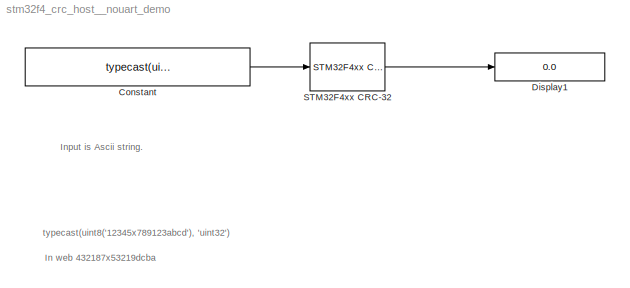
MODEL stm32f4_crc_host__nouart_demo
KIND model
BLOCK [Constant] Constant
  OutDataType = fixdt(1, 16)
  OutScaling = 2^0
  SampleTime = 0.01
  Value = typecast(uint8('12345x789123abcd'), 'uint32')
BLOCK [Display] Display1
  Decimation = 1
  Format = hex (Stored Integer)
  Lockdown = off
  Ports = [1]
BLOCK [Reference] STM32F4xx CRC-32  REF=stm32f4_crc_lib/STM32F4xx CRC-32
  Ports = [1, 1]
  SourceBlock = stm32f4_crc_lib/STM32F4xx CRC-32
  SourceType = stm32f4_crc32
  blockid = stm32f4_crc_host__nouart_demoSTM32F4xxCRC32
  crcinit = 0xFFFFFFFF
  crcinitdec = 4294967295
  crcxor = 0x00000000
  crcxordec = 0
  direct = on
  mode = STM32F4xx CRC-32
  poly = 0x4C11DB7
  polydec = 79764919
  refin = off
  refout = off
  sampletime = -1
  sampletimestr = 0.01
ANNOTATION (root): In web 432187x53219dcba
ANNOTATION (root): Input is Ascii string.
ANNOTATION (root): typecast(uint8('12345x789123abcd'), 'uint32')
LINE Constant:1 -> STM32F4xx CRC-32:1
LINE STM32F4xx CRC-32:1 -> Display1:1
